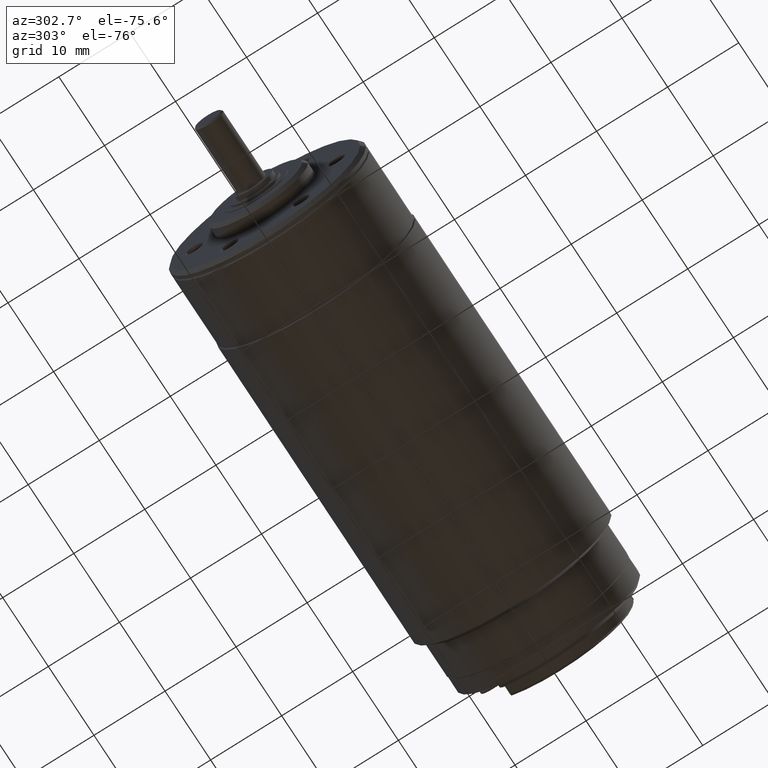
[diagram: clean part render]
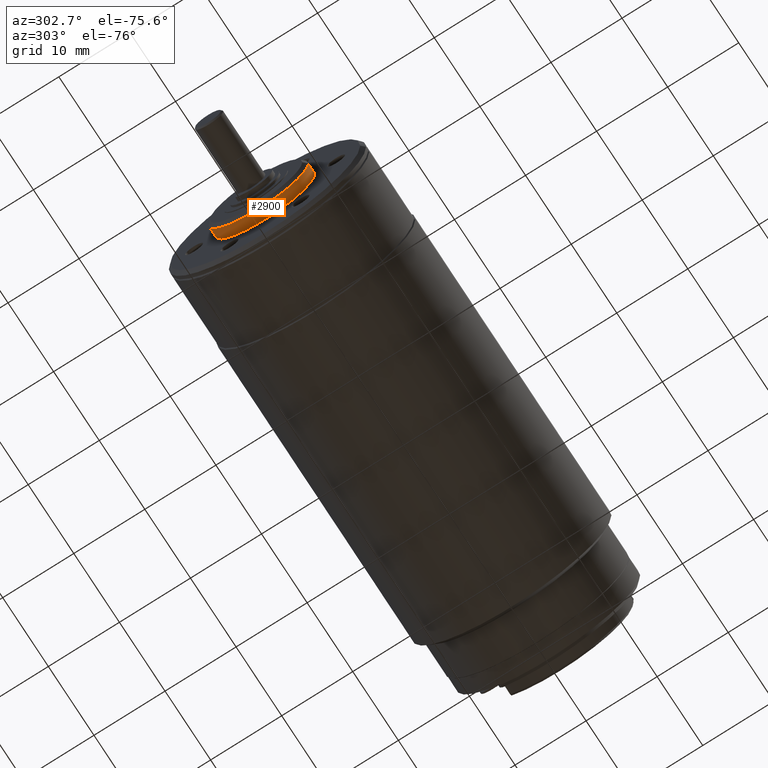
[diagram: same view with one face highlighted and labeled with its STEP entity id]
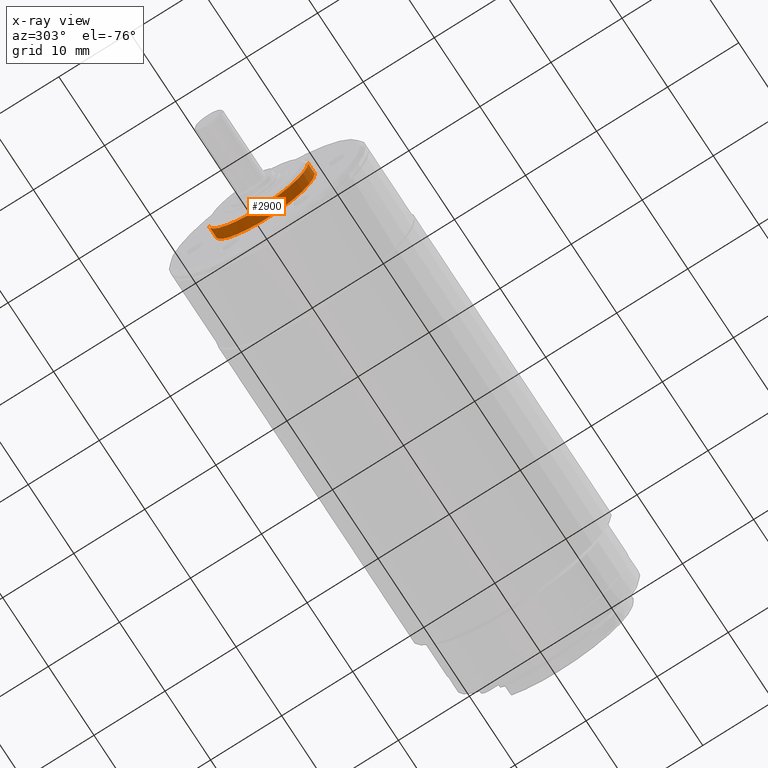
[diagram: x-ray of the same camera — body ghosted, the highlighted face saturated]
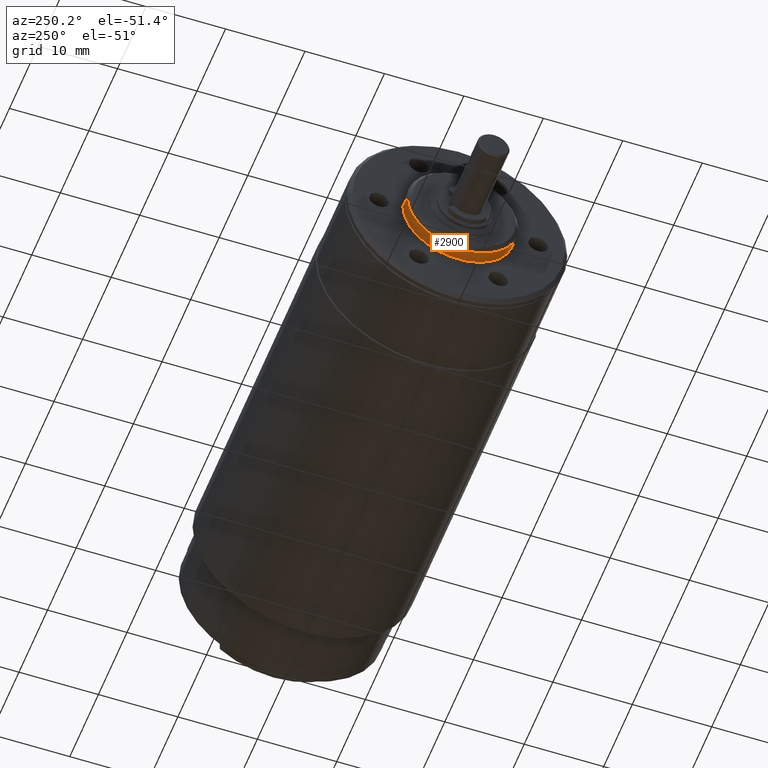
[diagram: same view with one face highlighted and labeled with its STEP entity id]
A machine part, auxiliary view. The second image highlights one B-rep face of the part: STEP entity #2900.
The next image is the same camera in x-ray: the body ghosted, the highlighted face saturated — about 0% of this face is hidden behind the body in this view.
A second angle (auxiliary view) of the same face is appended — the face is thin or edge-on in the first view.
In plain terms, the highlighted cylindrical surface (partial cylindrical patch) has radius 7 mm, axis along (-1, 0, 0).
Its self-contained STEP definition (entity closure, byte-faithful):
#739=CARTESIAN_POINT('',(-3.035E1,0.E0,0.E0));
#740=DIRECTION('',(-1.E0,0.E0,0.E0));
#741=DIRECTION('',(0.E0,1.E0,0.E0));
#742=AXIS2_PLACEMENT_3D('',#739,#740,#741);
#835=CARTESIAN_POINT('',(-3.185E1,-1.773264273374E-14,0.E0));
#836=DIRECTION('',(1.E0,0.E0,0.E0));
#837=DIRECTION('',(0.E0,-1.E0,0.E0));
#838=AXIS2_PLACEMENT_3D('',#835,#836,#837);
#840=CARTESIAN_POINT('',(-3.185E1,-1.773264273374E-14,0.E0));
#841=DIRECTION('',(1.E0,0.E0,0.E0));
#842=DIRECTION('',(0.E0,0.E0,-1.E0));
#843=AXIS2_PLACEMENT_3D('',#840,#841,#842);
#883=DIRECTION('',(1.E0,1.642993888816E-10,1.469210839405E-10));
#884=VECTOR('',#883,1.500000000248E0);
#885=CARTESIAN_POINT('',(-3.185000000025E1,6.999999999754E0,
-2.203810544453E-10));
#886=LINE('',#885,#884);
#887=DIRECTION('',(-1.E0,1.642916913353E-10,6.256959519760E-11));
#888=VECTOR('',#887,1.500000000248E0);
#889=CARTESIAN_POINT('',(-3.035E1,-7.E0,1.265266616334E-10));
#890=LINE('',#889,#888);
#1621=CARTESIAN_POINT('',(-3.185E1,-8.661285875092E-14,-7.000000000001E0));
#1622=CARTESIAN_POINT('',(-3.185E1,7.000000000001E0,0.E0));
#1623=VERTEX_POINT('',#1621);
#1624=VERTEX_POINT('',#1622);
#1625=CARTESIAN_POINT('',(-3.185E1,-7.000000000001E0,0.E0));
#1626=VERTEX_POINT('',#1625);
#1627=CARTESIAN_POINT('',(-3.035E1,7.E0,0.E0));
#1628=CARTESIAN_POINT('',(-3.035E1,-7.E0,0.E0));
#1629=VERTEX_POINT('',#1627);
#1630=VERTEX_POINT('',#1628);
#2884=CARTESIAN_POINT('',(-3.024599100767E1,0.E0,0.E0));
#2885=DIRECTION('',(-1.E0,0.E0,0.E0));
#2886=DIRECTION('',(0.E0,1.E0,0.E0));
#2887=AXIS2_PLACEMENT_3D('',#2884,#2885,#2886);
#2888=CYLINDRICAL_SURFACE('',#2887,7.E0);
#2890=ORIENTED_EDGE('',*,*,#2889,.F.);
#2892=ORIENTED_EDGE('',*,*,#2891,.F.);
#2894=ORIENTED_EDGE('',*,*,#2893,.F.);
#2895=ORIENTED_EDGE('',*,*,#2812,.F.);
#2897=ORIENTED_EDGE('',*,*,#2896,.F.);
#2898=EDGE_LOOP('',(#2890,#2892,#2894,#2895,#2897));
#2899=FACE_OUTER_BOUND('',#2898,.F.);
#2900=ADVANCED_FACE('',(#2899),#2888,.T.);
#743=CIRCLE('',#742,7.E0);
#839=CIRCLE('',#838,7.000000000001E0);
#844=CIRCLE('',#843,7.000000000001E0);
#2812=EDGE_CURVE('',#1629,#1630,#743,.T.);
#2889=EDGE_CURVE('',#1623,#1624,#844,.T.);
#2891=EDGE_CURVE('',#1626,#1623,#839,.T.);
#2893=EDGE_CURVE('',#1630,#1626,#890,.T.);
#2896=EDGE_CURVE('',#1624,#1629,#886,.T.);